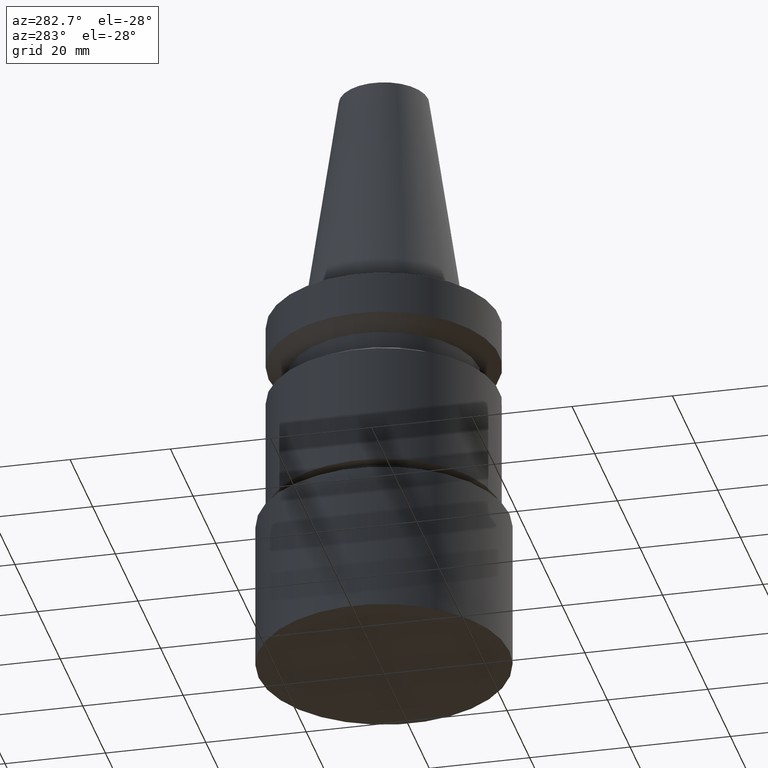
[diagram: clean part render]
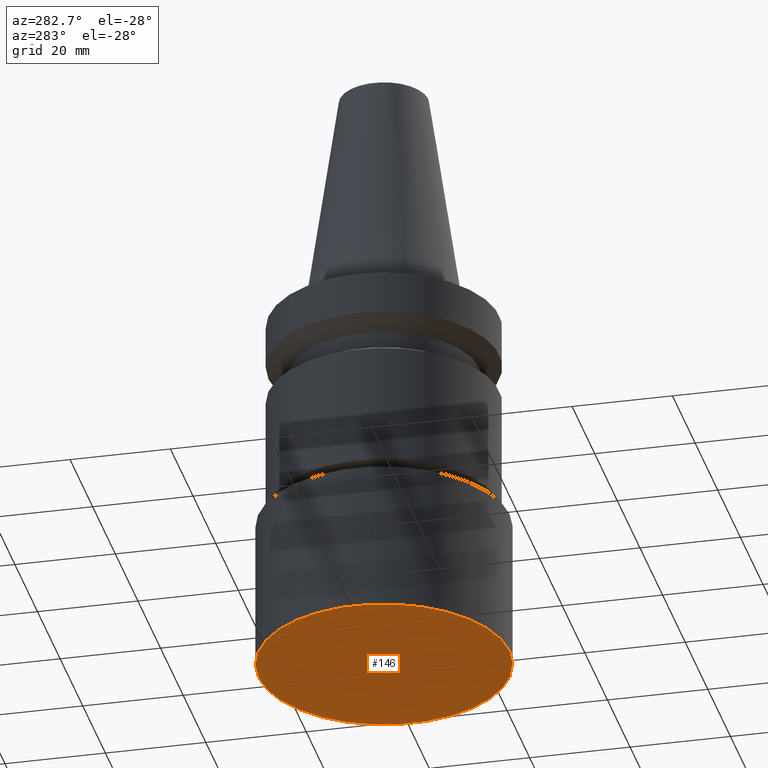
[diagram: same view with one face highlighted and labeled with its STEP entity id]
A machine part, auxiliary view. The second image highlights one B-rep face of the part: STEP entity #146.
In plain terms, the highlighted planar face has unit normal (0, 0, -1).
Its self-contained STEP definition (entity closure, byte-faithful):
#138=EDGE_CURVE('Unnamed[1]',#289,#289,#290,.T.);
#146=ADVANCED_FACE('Unnamed[1]',(#299),#300,.T.);
#289=VERTEX_POINT('',#468);
#290=CIRCLE('',#469,25.0);
#299=FACE_OUTER_BOUND('',#480,.T.);
#300=PLANE('',#481);
#468=CARTESIAN_POINT('',(4.59242549680257E-015,25.0,-75.0));
#469=AXIS2_PLACEMENT_3D('',#629,#630,#631);
#480=EDGE_LOOP('',(#637));
#481=AXIS2_PLACEMENT_3D('',#638,#639,#640);
#629=CARTESIAN_POINT('',(4.59242549680257E-015,9.18485099360515E-015,-75.0));
#630=DIRECTION('',(6.12323399573677E-017,1.22464679914735E-016,-1.0));
#631=DIRECTION('',(-1.23259516440783E-032,1.0,1.22464679914735E-016));
#637=ORIENTED_EDGE('',*,*,#138,.T.);
#638=CARTESIAN_POINT('',(4.59242549680257E-015,12.5,-75.0));
#639=DIRECTION('',(6.12323399573677E-017,1.22464679914735E-016,-1.0));
#640=DIRECTION('',(-1.23259516440783E-032,1.0,1.22464679914735E-016));